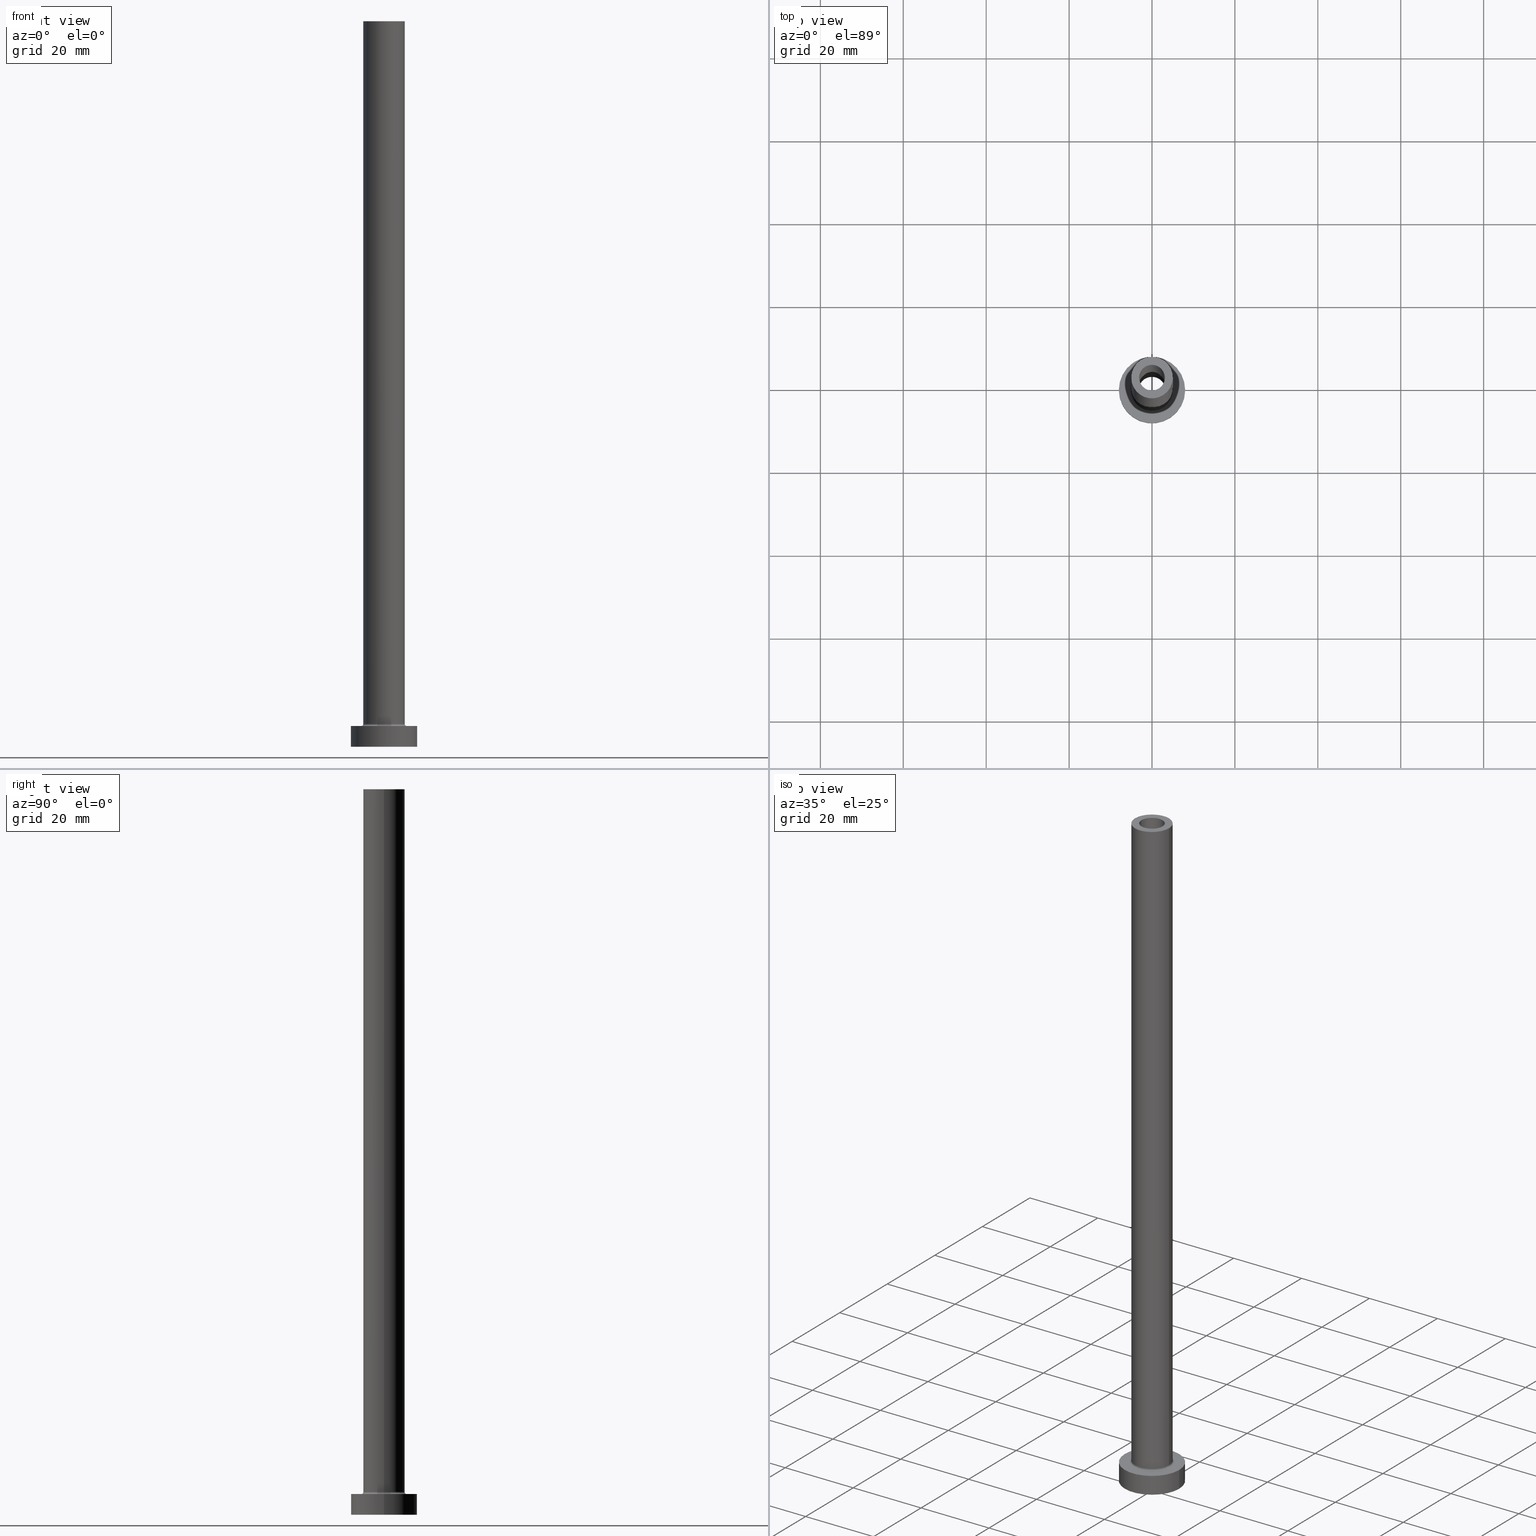
[diagram: canonical four-view strip — front | top / right | iso, engineering-drawing reading convention]
A machine part, canonical four-view strip (front | top / right | iso — engineering-drawing reading convention). The complete STEP part file that produces these views, byte-faithful:
ISO-10303-21;
HEADER;
FILE_DESCRIPTION (( 'STEP AP203' ),
    '1' );
FILE_NAME ('6a0a.STEP',
    '2023-02-13T09:12:11',
    ( '' ),
    ( '' ),
    'SwSTEP 2.0',
    'SolidWorks 2019',
    '' );
FILE_SCHEMA (( 'CONFIG_CONTROL_DESIGN' ));
ENDSEC;

DATA;
#1 = AXIS2_PLACEMENT_3D ( 'NONE', #14, #52, #18 ) ;
#2 = DIRECTION ( 'NONE',  ( -1.000000000000000000, 0.000000000000000000, 0.000000000000000000 ) ) ;
#3 = CC_DESIGN_APPROVAL ( #161, ( #322 ) ) ;
#4 = ADVANCED_BREP_SHAPE_REPRESENTATION ( '6a0a', ( #264, #373 ), #255 ) ;
#5 = DIRECTION ( 'NONE',  ( 0.000000000000000000, 0.000000000000000000, -1.000000000000000000 ) ) ;
#6 = DIRECTION ( 'NONE',  ( 1.000000000000000000, 0.000000000000000000, 0.000000000000000000 ) ) ;
#7 = APPROVAL_ROLE ( '' ) ;
#8 = CARTESIAN_POINT ( 'NONE',  ( -3.100000000000000089, 0.000000000000000000, 175.0000000000000284 ) ) ;
#9 = AXIS2_PLACEMENT_3D ( 'NONE', #166, #143, #237 ) ;
#10 = DATE_TIME_ROLE ( 'creation_date' ) ;
#11 = EDGE_CURVE ( 'NONE', #44, #209, #23, .T. ) ;
#12 = PLANE ( 'NONE',  #106 ) ;
#13 = PERSON_AND_ORGANIZATION_ROLE ( 'design_owner' ) ;
#14 = CARTESIAN_POINT ( 'NONE',  ( 0.000000000000000000, 0.000000000000000000, 130.0000000000000000 ) ) ;
#15 = CARTESIAN_POINT ( 'NONE',  ( 0.000000000000000000, 0.000000000000000000, 130.0000000000000000 ) ) ;
#16 = AXIS2_PLACEMENT_3D ( 'NONE', #232, #381, #244 ) ;
#17 = AXIS2_PLACEMENT_3D ( 'NONE', #128, #226, #51 ) ;
#18 = DIRECTION ( 'NONE',  ( 1.000000000000000000, 0.000000000000000000, 0.000000000000000000 ) ) ;
#19 = CARTESIAN_POINT ( 'NONE',  ( -5.000000000000000000, 0.000000000000000000, 175.0000000000000284 ) ) ;
#20 = EDGE_LOOP ( 'NONE', ( #297, #198, #185, #277 ) ) ;
#21 = COORDINATED_UNIVERSAL_TIME_OFFSET ( 1, 0, .AHEAD. ) ;
#22 = DIRECTION ( 'NONE',  ( 0.000000000000000000, 0.000000000000000000, 1.000000000000000000 ) ) ;
#23 = LINE ( 'NONE', #454, #210 ) ;
#24 = ORIENTED_EDGE ( 'NONE', *, *, #155, .F. ) ;
#25 = CIRCLE ( 'NONE', #453, 5.000000000000000000 ) ;
#26 = PERSON_AND_ORGANIZATION_ROLE ( 'design_supplier' ) ;
#27 = CIRCLE ( 'NONE', #193, 0.5000000000000004441 ) ;
#28 = ORIENTED_EDGE ( 'NONE', *, *, #376, .T. ) ;
#29 = VERTEX_POINT ( 'NONE', #103 ) ;
#30 = FACE_OUTER_BOUND ( 'NONE', #140, .T. ) ;
#31 = ADVANCED_FACE ( 'NONE', ( #312 ), #267, .T. ) ;
#32 = ORIENTED_EDGE ( 'NONE', *, *, #370, .T. ) ;
#33 = APPROVAL_DATE_TIME ( #417, #162 ) ;
#34 = VERTEX_POINT ( 'NONE', #392 ) ;
#35 = EDGE_CURVE ( 'NONE', #249, #29, #25, .T. ) ;
#36 = CIRCLE ( 'NONE', #77, 3.100000000000000089 ) ;
#37 = AXIS2_PLACEMENT_3D ( 'NONE', #235, #22, #107 ) ;
#38 = DIRECTION ( 'NONE',  ( 1.000000000000000000, 0.000000000000000000, 0.000000000000000000 ) ) ;
#39 = ORIENTED_EDGE ( 'NONE', *, *, #295, .T. ) ;
#40 = ADVANCED_FACE ( 'NONE', ( #355 ), #275, .F. ) ;
#41 = DIRECTION ( 'NONE',  ( -0.000000000000000000, -0.000000000000000000, -1.000000000000000000 ) ) ;
#42 = EDGE_LOOP ( 'NONE', ( #204, #202 ) ) ;
#43 = CARTESIAN_POINT ( 'NONE',  ( 0.000000000000000000, 0.000000000000000000, 0.000000000000000000 ) ) ;
#44 = VERTEX_POINT ( 'NONE', #423 ) ;
#45 = AXIS2_PLACEMENT_3D ( 'NONE', #426, #424, #299 ) ;
#46 = ORIENTED_EDGE ( 'NONE', *, *, #50, .T. ) ;
#47 = CARTESIAN_POINT ( 'NONE',  ( 0.000000000000000000, 0.000000000000000000, 5.500000000000005329 ) ) ;
#48 = APPROVAL_STATUS ( 'not_yet_approved' ) ;
#49 = CARTESIAN_POINT ( 'NONE',  ( 0.000000000000000000, 0.000000000000000000, 175.0000000000000284 ) ) ;
#50 = EDGE_CURVE ( 'NONE', #44, #380, #174, .T. ) ;
#51 = DIRECTION ( 'NONE',  ( 1.000000000000000000, 0.000000000000000000, 0.000000000000000000 ) ) ;
#52 = DIRECTION ( 'NONE',  ( 0.000000000000000000, 0.000000000000000000, 1.000000000000000000 ) ) ;
#53 = DIRECTION ( 'NONE',  ( -1.000000000000000000, 0.000000000000000000, 0.000000000000000000 ) ) ;
#54 = AXIS2_PLACEMENT_3D ( 'NONE', #49, #180, #116 ) ;
#55 = ORGANIZATION ( 'NEUR�EN�', 'NEUR�EN�', '' ) ;
#56 = CARTESIAN_POINT ( 'NONE',  ( 3.250000000000000444, 3.980102097228898231E-16, 139.1923881554251068 ) ) ;
#57 = CC_DESIGN_PERSON_AND_ORGANIZATION_ASSIGNMENT ( #315, #26, ( #261 ) ) ;
#58 = ORIENTED_EDGE ( 'NONE', *, *, #181, .T. ) ;
#59 = CARTESIAN_POINT ( 'NONE',  ( 3.100000000000000089, 3.796405077356794918E-16, 130.0000000000000000 ) ) ;
#60 = ORIENTED_EDGE ( 'NONE', *, *, #245, .F. ) ;
#61 = VERTEX_POINT ( 'NONE', #67 ) ;
#62 = AXIS2_PLACEMENT_3D ( 'NONE', #437, #262, #378 ) ;
#63 = PERSON_AND_ORGANIZATION ( #172, #55 ) ;
#64 = EDGE_LOOP ( 'NONE', ( #328, #349, #39, #95 ) ) ;
#65 = FACE_OUTER_BOUND ( 'NONE', #397, .T. ) ;
#66 = VERTEX_POINT ( 'NONE', #59 ) ;
#67 = CARTESIAN_POINT ( 'NONE',  ( -3.250000000000000444, 0.000000000000000000, 130.0000000000000000 ) ) ;
#68 = AXIS2_PLACEMENT_3D ( 'NONE', #177, #156, #280 ) ;
#69 = VECTOR ( 'NONE', #41, 1000.000000000000000 ) ;
#70 = CARTESIAN_POINT ( 'NONE',  ( 0.000000000000000000, 0.000000000000000000, 130.0000000000000000 ) ) ;
#71 = EDGE_LOOP ( 'NONE', ( #382, #450, #251, #147 ) ) ;
#72 = EDGE_CURVE ( 'NONE', #345, #76, #36, .T. ) ;
#73 = CARTESIAN_POINT ( 'NONE',  ( 0.000000000000000000, 0.000000000000000000, 175.0000000000000284 ) ) ;
#74 = ORIENTED_EDGE ( 'NONE', *, *, #295, .F. ) ;
#75 = CYLINDRICAL_SURFACE ( 'NONE', #68, 3.250000000000000444 ) ;
#76 = VERTEX_POINT ( 'NONE', #415 ) ;
#77 = AXIS2_PLACEMENT_3D ( 'NONE', #390, #351, #38 ) ;
#78 = DIRECTION ( 'NONE',  ( -0.000000000000000000, -0.000000000000000000, -1.000000000000000000 ) ) ;
#79 = APPLICATION_CONTEXT ( 'configuration controlled 3d designs of mechanical parts and assemblies' ) ;
#80 = APPLICATION_PROTOCOL_DEFINITION ( 'international standard', 'config_control_design', 1994, #324 ) ;
#81 = FACE_BOUND ( 'NONE', #139, .T. ) ;
#82 = ADVANCED_FACE ( 'NONE', ( #30 ), #341, .F. ) ;
#83 = PERSON_AND_ORGANIZATION_ROLE ( 'creator' ) ;
#84 = CARTESIAN_POINT ( 'NONE',  ( 0.000000000000000000, 0.000000000000000000, 0.000000000000000000 ) ) ;
#85 =( LENGTH_UNIT ( ) NAMED_UNIT ( * ) SI_UNIT ( .MILLI., .METRE. ) );
#86 = CARTESIAN_POINT ( 'NONE',  ( 0.000000000000000000, 0.000000000000000000, 175.0000000000000284 ) ) ;
#87 = CIRCLE ( 'NONE', #45, 3.250000000000000444 ) ;
#88 = CIRCLE ( 'NONE', #266, 5.000000000000000000 ) ;
#89 = CARTESIAN_POINT ( 'NONE',  ( 0.000000000000000000, 0.000000000000000000, 139.1923881554251068 ) ) ;
#90 = DIRECTION ( 'NONE',  ( 1.000000000000000000, 0.000000000000000000, -0.000000000000000000 ) ) ;
#91 = CARTESIAN_POINT ( 'NONE',  ( 0.000000000000000000, 0.000000000000000000, 0.000000000000000000 ) ) ;
#92 = DIRECTION ( 'NONE',  ( -0.000000000000000000, -0.000000000000000000, -1.000000000000000000 ) ) ;
#93 = CC_DESIGN_PERSON_AND_ORGANIZATION_ASSIGNMENT ( #63, #137, ( #261 ) ) ;
#94 = AXIS2_PLACEMENT_3D ( 'NONE', #47, #186, #123 ) ;
#95 = ORIENTED_EDGE ( 'NONE', *, *, #35, .T. ) ;
#96 = LOCAL_TIME ( 10, 12, 11.00000000000000000, #269 ) ;
#97 = DATE_TIME_ROLE ( 'classification_date' ) ;
#98 = DIRECTION ( 'NONE',  ( -0.000000000000000000, -0.000000000000000000, -1.000000000000000000 ) ) ;
#99 = DIRECTION ( 'NONE',  ( -1.000000000000000000, 0.000000000000000000, 0.000000000000000000 ) ) ;
#100 = DIRECTION ( 'NONE',  ( 1.000000000000000000, 0.000000000000000000, 0.000000000000000000 ) ) ;
#101 = EDGE_CURVE ( 'NONE', #422, #34, #377, .T. ) ;
#102 = SHAPE_DEFINITION_REPRESENTATION ( #115, #4 ) ;
#103 = CARTESIAN_POINT ( 'NONE',  ( 5.000000000000000000, 6.123233995736766282E-16, 5.500000000000005329 ) ) ;
#104 = ORIENTED_EDGE ( 'NONE', *, *, #402, .T. ) ;
#105 = AXIS2_PLACEMENT_3D ( 'NONE', #265, #446, #100 ) ;
#106 = AXIS2_PLACEMENT_3D ( 'NONE', #15, #263, #90 ) ;
#107 = DIRECTION ( 'NONE',  ( 1.000000000000000000, 0.000000000000000000, 0.000000000000000000 ) ) ;
#108 = ORIENTED_EDGE ( 'NONE', *, *, #205, .F. ) ;
#109 = CARTESIAN_POINT ( 'NONE',  ( 8.000000000000000000, 9.797174393178825657E-16, 5.000000000000000000 ) ) ;
#110 = EDGE_LOOP ( 'NONE', ( #233, #112, #447, #413 ) ) ;
#111 = CARTESIAN_POINT ( 'NONE',  ( 8.000000000000000000, 9.797174393178825657E-16, 5.000000000000000000 ) ) ;
#112 = ORIENTED_EDGE ( 'NONE', *, *, #314, .T. ) ;
#113 = DIRECTION ( 'NONE',  ( 1.000000000000000000, 0.000000000000000000, 0.000000000000000000 ) ) ;
#114 = CC_DESIGN_PERSON_AND_ORGANIZATION_ASSIGNMENT ( #165, #444, ( #142 ) ) ;
#115 = PRODUCT_DEFINITION_SHAPE ( 'NONE', 'NONE',  #322 ) ;
#116 = DIRECTION ( 'NONE',  ( 1.000000000000000000, 0.000000000000000000, 0.000000000000000000 ) ) ;
#117 = EDGE_LOOP ( 'NONE', ( #173, #451 ) ) ;
#118 = LINE ( 'NONE', #111, #69 ) ;
#119 = PRODUCT_RELATED_PRODUCT_CATEGORY ( 'detail', '', ( #367 ) ) ;
#120 = EDGE_CURVE ( 'NONE', #352, #182, #238, .T. ) ;
#121 = DIRECTION ( 'NONE',  ( -1.000000000000000000, 0.000000000000000000, 0.000000000000000000 ) ) ;
#122 = CIRCLE ( 'NONE', #292, 3.250000000000000444 ) ;
#123 = DIRECTION ( 'NONE',  ( 1.000000000000000000, 0.000000000000000000, 0.000000000000000000 ) ) ;
#124 = APPROVAL_PERSON_ORGANIZATION ( #258, #214, #353 ) ;
#125 = APPROVAL_DATE_TIME ( #294, #161 ) ;
#126 = DIRECTION ( 'NONE',  ( 0.000000000000000000, 0.000000000000000000, 1.000000000000000000 ) ) ;
#127 = CALENDAR_DATE ( 2023, 13, 2 ) ;
#128 = CARTESIAN_POINT ( 'NONE',  ( 0.000000000000000000, 0.000000000000000000, 5.000000000000000000 ) ) ;
#129 = DIRECTION ( 'NONE',  ( 0.000000000000000000, 0.000000000000000000, -1.000000000000000000 ) ) ;
#130 = PERSON_AND_ORGANIZATION ( #172, #55 ) ;
#131 = CC_DESIGN_PERSON_AND_ORGANIZATION_ASSIGNMENT ( #405, #83, ( #322 ) ) ;
#132 = DATE_AND_TIME ( #386, #221 ) ;
#133 = CIRCLE ( 'NONE', #94, 5.000000000000000000 ) ;
#134 = AXIS2_PLACEMENT_3D ( 'NONE', #270, #354, #460 ) ;
#135 = CIRCLE ( 'NONE', #318, 8.000000000000000000 ) ;
#136 = ORIENTED_EDGE ( 'NONE', *, *, #456, .T. ) ;
#137 = PERSON_AND_ORGANIZATION_ROLE ( 'creator' ) ;
#138 = CYLINDRICAL_SURFACE ( 'NONE', #134, 3.100000000000000089 ) ;
#139 = EDGE_LOOP ( 'NONE', ( #325, #197 ) ) ;
#140 = EDGE_LOOP ( 'NONE', ( #319, #240, #136, #391 ) ) ;
#141 = AXIS2_PLACEMENT_3D ( 'NONE', #316, #274, #6 ) ;
#142 = SECURITY_CLASSIFICATION ( '', '', #343 ) ;
#143 = DIRECTION ( 'NONE',  ( -0.000000000000000000, -0.000000000000000000, -1.000000000000000000 ) ) ;
#144 = EDGE_LOOP ( 'NONE', ( #108, #272 ) ) ;
#145 = EDGE_CURVE ( 'NONE', #66, #231, #432, .T. ) ;
#146 = CARTESIAN_POINT ( 'NONE',  ( 5.000000000000000000, 6.123233995736766282E-16, 175.0000000000000284 ) ) ;
#147 = ORIENTED_EDGE ( 'NONE', *, *, #11, .F. ) ;
#148 = DIRECTION ( 'NONE',  ( -0.000000000000000000, -0.000000000000000000, -1.000000000000000000 ) ) ;
#149 = EDGE_LOOP ( 'NONE', ( #24, #394, #317, #74 ) ) ;
#150 = CIRCLE ( 'NONE', #1, 3.100000000000000089 ) ;
#151 = DIRECTION ( 'NONE',  ( 1.000000000000000000, 0.000000000000000000, 0.000000000000000000 ) ) ;
#152 = ORIENTED_EDGE ( 'NONE', *, *, #456, .F. ) ;
#153 = CARTESIAN_POINT ( 'NONE',  ( 8.000000000000000000, 9.797174393178825657E-16, 0.000000000000000000 ) ) ;
#154 = EDGE_CURVE ( 'NONE', #380, #236, #118, .T. ) ;
#155 = EDGE_CURVE ( 'NONE', #385, #400, #283, .T. ) ;
#156 = DIRECTION ( 'NONE',  ( 0.000000000000000000, 0.000000000000000000, -1.000000000000000000 ) ) ;
#157 = AXIS2_PLACEMENT_3D ( 'NONE', #278, #201, #271 ) ;
#158 = DIRECTION ( 'NONE',  ( 0.000000000000000000, 0.000000000000000000, -1.000000000000000000 ) ) ;
#159 = AXIS2_PLACEMENT_3D ( 'NONE', #89, #371, #223 ) ;
#160 = CARTESIAN_POINT ( 'NONE',  ( 5.500000000000000000, 0.000000000000000000, 5.500000000000005329 ) ) ;
#161 = APPROVAL ( #48, 'NEUR�EN�' ) ;
#162 = APPROVAL ( #448, 'NEUR�EN�' ) ;
#163 = APPROVAL_PERSON_ORGANIZATION ( #213, #161, #7 ) ;
#164 = LINE ( 'NONE', #296, #366 ) ;
#165 = PERSON_AND_ORGANIZATION ( #172, #55 ) ;
#166 = CARTESIAN_POINT ( 'NONE',  ( 0.000000000000000000, 0.000000000000000000, 175.0000000000000284 ) ) ;
#167 = CIRCLE ( 'NONE', #427, 3.250000000000000444 ) ;
#168 = ORIENTED_EDGE ( 'NONE', *, *, #245, .T. ) ;
#169 = CALENDAR_DATE ( 2023, 13, 2 ) ;
#170 = ORIENTED_EDGE ( 'NONE', *, *, #452, .T. ) ;
#171 = DIRECTION ( 'NONE',  ( 0.000000000000000000, 0.000000000000000000, 1.000000000000000000 ) ) ;
#172 = PERSON ( 'NEUR�EN�', 'NEUR�EN�', 'NEUR�EN�', ('NEUR�EN�'), ('NEUR�EN�'), ('NEUR�EN�') ) ;
#173 = ORIENTED_EDGE ( 'NONE', *, *, #300, .F. ) ;
#174 = CIRCLE ( 'NONE', #16, 8.000000000000000000 ) ;
#175 = CC_DESIGN_APPROVAL ( #214, ( #261 ) ) ;
#176 = CARTESIAN_POINT ( 'NONE',  ( 0.000000000000000000, 0.000000000000000000, 5.500000000000005329 ) ) ;
#177 = CARTESIAN_POINT ( 'NONE',  ( 0.000000000000000000, 0.000000000000000000, 139.1923881554251068 ) ) ;
#178 = ORIENTED_EDGE ( 'NONE', *, *, #72, .T. ) ;
#179 = LINE ( 'NONE', #441, #293 ) ;
#180 = DIRECTION ( 'NONE',  ( 0.000000000000000000, 0.000000000000000000, 1.000000000000000000 ) ) ;
#181 = EDGE_CURVE ( 'NONE', #249, #34, #425, .T. ) ;
#182 = VERTEX_POINT ( 'NONE', #369 ) ;
#183 = AXIS2_PLACEMENT_3D ( 'NONE', #207, #401, #360 ) ;
#184 = PLANE ( 'NONE',  #414 ) ;
#185 = ORIENTED_EDGE ( 'NONE', *, *, #11, .T. ) ;
#186 = DIRECTION ( 'NONE',  ( 0.000000000000000000, 0.000000000000000000, 1.000000000000000000 ) ) ;
#187 = COORDINATED_UNIVERSAL_TIME_OFFSET ( 1, 0, .AHEAD. ) ;
#188 = FACE_OUTER_BOUND ( 'NONE', #20, .T. ) ;
#189 = COORDINATED_UNIVERSAL_TIME_OFFSET ( 1, 0, .AHEAD. ) ;
#190 = AXIS2_PLACEMENT_3D ( 'NONE', #461, #323, #431 ) ;
#191 = CC_DESIGN_DATE_AND_TIME_ASSIGNMENT ( #132, #97, ( #142 ) ) ;
#192 = APPLICATION_PROTOCOL_DEFINITION ( 'international standard', 'config_control_design', 1994, #79 ) ;
#193 = AXIS2_PLACEMENT_3D ( 'NONE', #160, #339, #301 ) ;
#194 = ADVANCED_FACE ( 'NONE', ( #368 ), #75, .F. ) ;
#195 = CARTESIAN_POINT ( 'NONE',  ( 0.000000000000000000, 0.000000000000000000, 5.000000000000000000 ) ) ;
#196 = CARTESIAN_POINT ( 'NONE',  ( 0.000000000000000000, 0.000000000000000000, 5.500000000000005329 ) ) ;
#197 = ORIENTED_EDGE ( 'NONE', *, *, #439, .T. ) ;
#198 = ORIENTED_EDGE ( 'NONE', *, *, #50, .F. ) ;
#199 = APPROVAL_ROLE ( '' ) ;
#200 = FACE_OUTER_BOUND ( 'NONE', #71, .T. ) ;
#201 = DIRECTION ( 'NONE',  ( 0.000000000000000000, 0.000000000000000000, 1.000000000000000000 ) ) ;
#202 = ORIENTED_EDGE ( 'NONE', *, *, #145, .T. ) ;
#203 = ORIENTED_EDGE ( 'NONE', *, *, #402, .F. ) ;
#204 = ORIENTED_EDGE ( 'NONE', *, *, #303, .T. ) ;
#205 = EDGE_CURVE ( 'NONE', #209, #236, #387, .T. ) ;
#206 = FACE_BOUND ( 'NONE', #117, .T. ) ;
#207 = CARTESIAN_POINT ( 'NONE',  ( -5.500000000000000000, 6.735557395310442023E-16, 5.500000000000005329 ) ) ;
#208 = FACE_OUTER_BOUND ( 'NONE', #279, .T. ) ;
#209 = VERTEX_POINT ( 'NONE', #332 ) ;
#210 = VECTOR ( 'NONE', #98, 1000.000000000000000 ) ;
#211 = LOCAL_TIME ( 10, 12, 11.00000000000000000, #189 ) ;
#212 = CARTESIAN_POINT ( 'NONE',  ( -3.100000000000000089, 0.000000000000000000, 130.0000000000000000 ) ) ;
#213 = PERSON_AND_ORGANIZATION ( #172, #55 ) ;
#214 = APPROVAL ( #407, 'NEUR�EN�' ) ;
#215 = CARTESIAN_POINT ( 'NONE',  ( -5.000000000000000000, 0.000000000000000000, 5.500000000000005329 ) ) ;
#216 = ADVANCED_FACE ( 'NONE', ( #81, #285 ), #184, .T. ) ;
#217 = CYLINDRICAL_SURFACE ( 'NONE', #159, 3.250000000000000444 ) ;
#218 = DIRECTION ( 'NONE',  ( 0.000000000000000000, 0.000000000000000000, 1.000000000000000000 ) ) ;
#219 = DIRECTION ( 'NONE',  ( 0.000000000000000000, 0.000000000000000000, 1.000000000000000000 ) ) ;
#220 = VECTOR ( 'NONE', #148, 1000.000000000000000 ) ;
#221 = LOCAL_TIME ( 10, 12, 11.00000000000000000, #383 ) ;
#222 = PLANE ( 'NONE',  #62 ) ;
#223 = DIRECTION ( 'NONE',  ( -1.000000000000000000, 0.000000000000000000, 0.000000000000000000 ) ) ;
#224 = ADVANCED_FACE ( 'NONE', ( #208 ), #363, .F. ) ;
#225 = CARTESIAN_POINT ( 'NONE',  ( 3.100000000000000089, 3.796405077356794918E-16, 175.0000000000000284 ) ) ;
#226 = DIRECTION ( 'NONE',  ( 0.000000000000000000, 0.000000000000000000, 1.000000000000000000 ) ) ;
#227 = FACE_BOUND ( 'NONE', #428, .T. ) ;
#228 = AXIS2_PLACEMENT_3D ( 'NONE', #247, #326, #151 ) ;
#229 = VECTOR ( 'NONE', #158, 1000.000000000000000 ) ;
#230 = ADVANCED_FACE ( 'NONE', ( #188 ), #429, .T. ) ;
#231 = VERTEX_POINT ( 'NONE', #212 ) ;
#232 = CARTESIAN_POINT ( 'NONE',  ( 0.000000000000000000, 0.000000000000000000, 5.000000000000000000 ) ) ;
#233 = ORIENTED_EDGE ( 'NONE', *, *, #347, .T. ) ;
#234 = DATE_AND_TIME ( #169, #342 ) ;
#235 = CARTESIAN_POINT ( 'NONE',  ( 0.000000000000000000, 0.000000000000000000, 175.0000000000000284 ) ) ;
#236 = VERTEX_POINT ( 'NONE', #153 ) ;
#237 = DIRECTION ( 'NONE',  ( -1.000000000000000000, 0.000000000000000000, 0.000000000000000000 ) ) ;
#238 = CIRCLE ( 'NONE', #141, 3.250000000000000444 ) ;
#239 = AXIS2_PLACEMENT_3D ( 'NONE', #86, #92, #53 ) ;
#240 = ORIENTED_EDGE ( 'NONE', *, *, #289, .F. ) ;
#241 = CALENDAR_DATE ( 2023, 13, 2 ) ;
#242 = UNCERTAINTY_MEASURE_WITH_UNIT (LENGTH_MEASURE( 1.000000000000000082E-05 ), #85, 'distance_accuracy_value', 'NONE');
#243 = CYLINDRICAL_SURFACE ( 'NONE', #440, 8.000000000000000000 ) ;
#244 = DIRECTION ( 'NONE',  ( 1.000000000000000000, 0.000000000000000000, 0.000000000000000000 ) ) ;
#245 = EDGE_CURVE ( 'NONE', #399, #61, #122, .T. ) ;
#246 = EDGE_LOOP ( 'NONE', ( #46, #284 ) ) ;
#247 = CARTESIAN_POINT ( 'NONE',  ( 0.000000000000000000, 0.000000000000000000, 130.0000000000000000 ) ) ;
#248 = ADVANCED_FACE ( 'NONE', ( #206, #430 ), #253, .F. ) ;
#249 = VERTEX_POINT ( 'NONE', #215 ) ;
#250 = DIRECTION ( 'NONE',  ( 0.000000000000000000, 0.000000000000000000, 1.000000000000000000 ) ) ;
#251 = ORIENTED_EDGE ( 'NONE', *, *, #379, .T. ) ;
#252 = DIRECTION ( 'NONE',  ( 0.000000000000000000, 0.000000000000000000, 1.000000000000000000 ) ) ;
#253 = PLANE ( 'NONE',  #190 ) ;
#254 = AXIS2_PLACEMENT_3D ( 'NONE', #196, #171, #309 ) ;
#255 =( GEOMETRIC_REPRESENTATION_CONTEXT ( 3 ) GLOBAL_UNCERTAINTY_ASSIGNED_CONTEXT ( ( #242 ) ) GLOBAL_UNIT_ASSIGNED_CONTEXT ( ( #85, #298, #411 ) ) REPRESENTATION_CONTEXT ( 'NONE', 'WORKASPACE' ) );
#256 = LINE ( 'NONE', #404, #220 ) ;
#257 = DIRECTION ( 'NONE',  ( 1.000000000000000000, 0.000000000000000000, 0.000000000000000000 ) ) ;
#258 = PERSON_AND_ORGANIZATION ( #172, #55 ) ;
#259 = DIRECTION ( 'NONE',  ( 0.000000000000000000, 0.000000000000000000, -1.000000000000000000 ) ) ;
#260 = EDGE_CURVE ( 'NONE', #385, #29, #458, .T. ) ;
#261 = PRODUCT_DEFINITION_FORMATION_WITH_SPECIFIED_SOURCE ( 'LIBOVOLN�', '', #367, .NOT_KNOWN. ) ;
#262 = DIRECTION ( 'NONE',  ( 0.000000000000000000, 0.000000000000000000, 1.000000000000000000 ) ) ;
#263 = DIRECTION ( 'NONE',  ( 0.000000000000000000, 0.000000000000000000, 1.000000000000000000 ) ) ;
#264 = MANIFOLD_SOLID_BREP ( 'Odebrat vysunut�m4', #357 ) ;
#265 = CARTESIAN_POINT ( 'NONE',  ( 0.000000000000000000, 0.000000000000000000, 5.000000000000000000 ) ) ;
#266 = AXIS2_PLACEMENT_3D ( 'NONE', #434, #126, #257 ) ;
#267 = CYLINDRICAL_SURFACE ( 'NONE', #9, 5.000000000000000000 ) ;
#268 = EDGE_LOOP ( 'NONE', ( #286, #60 ) ) ;
#269 = COORDINATED_UNIVERSAL_TIME_OFFSET ( 1, 0, .AHEAD. ) ;
#270 = CARTESIAN_POINT ( 'NONE',  ( 0.000000000000000000, 0.000000000000000000, 175.0000000000000284 ) ) ;
#271 = DIRECTION ( 'NONE',  ( 1.000000000000000000, 0.000000000000000000, 0.000000000000000000 ) ) ;
#272 = ORIENTED_EDGE ( 'NONE', *, *, #379, .F. ) ;
#273 = CARTESIAN_POINT ( 'NONE',  ( 3.250000000000000444, 3.980102097228898231E-16, 130.0000000000000000 ) ) ;
#274 = DIRECTION ( 'NONE',  ( -0.000000000000000000, -0.000000000000000000, -1.000000000000000000 ) ) ;
#275 = TOROIDAL_SURFACE ( 'NONE', #157, 5.500000000000000000, 0.5000000000000000000 ) ;
#276 = CIRCLE ( 'NONE', #409, 5.500000000000000000 ) ;
#277 = ORIENTED_EDGE ( 'NONE', *, *, #205, .T. ) ;
#278 = CARTESIAN_POINT ( 'NONE',  ( 0.000000000000000000, 0.000000000000000000, 5.500000000000005329 ) ) ;
#279 = EDGE_LOOP ( 'NONE', ( #104, #170, #361, #281 ) ) ;
#280 = DIRECTION ( 'NONE',  ( -1.000000000000000000, 0.000000000000000000, 0.000000000000000000 ) ) ;
#281 = ORIENTED_EDGE ( 'NONE', *, *, #370, .F. ) ;
#282 = DIRECTION ( 'NONE',  ( 1.000000000000000000, 0.000000000000000000, 0.000000000000000000 ) ) ;
#283 = CIRCLE ( 'NONE', #54, 5.000000000000000000 ) ;
#284 = ORIENTED_EDGE ( 'NONE', *, *, #320, .T. ) ;
#285 = FACE_OUTER_BOUND ( 'NONE', #246, .T. ) ;
#286 = ORIENTED_EDGE ( 'NONE', *, *, #347, .F. ) ;
#287 = CARTESIAN_POINT ( 'NONE',  ( 0.000000000000000000, 0.000000000000000000, 5.000000000000000000 ) ) ;
#288 = DIRECTION ( 'NONE',  ( 0.000000000000000000, 0.000000000000000000, 1.000000000000000000 ) ) ;
#289 = EDGE_CURVE ( 'NONE', #29, #249, #133, .T. ) ;
#290 = DIRECTION ( 'NONE',  ( -0.000000000000000000, -0.000000000000000000, -1.000000000000000000 ) ) ;
#291 = CARTESIAN_POINT ( 'NONE',  ( 0.000000000000000000, 0.000000000000000000, 5.000000000000000000 ) ) ;
#292 = AXIS2_PLACEMENT_3D ( 'NONE', #70, #288, #398 ) ;
#293 = VECTOR ( 'NONE', #129, 1000.000000000000000 ) ;
#294 = DATE_AND_TIME ( #333, #421 ) ;
#295 = EDGE_CURVE ( 'NONE', #400, #249, #256, .T. ) ;
#296 = CARTESIAN_POINT ( 'NONE',  ( -3.250000000000000444, 0.000000000000000000, 139.1923881554251068 ) ) ;
#297 = ORIENTED_EDGE ( 'NONE', *, *, #154, .F. ) ;
#298 =( NAMED_UNIT ( * ) PLANE_ANGLE_UNIT ( ) SI_UNIT ( $, .RADIAN. ) );
#299 = DIRECTION ( 'NONE',  ( 1.000000000000000000, 0.000000000000000000, 0.000000000000000000 ) ) ;
#300 = EDGE_CURVE ( 'NONE', #182, #352, #87, .T. ) ;
#301 = DIRECTION ( 'NONE',  ( 0.000000000000000000, 0.000000000000000000, -1.000000000000000000 ) ) ;
#302 = FACE_OUTER_BOUND ( 'NONE', #356, .T. ) ;
#303 = EDGE_CURVE ( 'NONE', #231, #66, #150, .T. ) ;
#304 = DIRECTION ( 'NONE',  ( 1.000000000000000000, 0.000000000000000000, 0.000000000000000000 ) ) ;
#305 = FACE_OUTER_BOUND ( 'NONE', #436, .T. ) ;
#306 = CARTESIAN_POINT ( 'NONE',  ( 0.000000000000000000, 0.000000000000000000, 130.0000000000000000 ) ) ;
#307 = ADVANCED_FACE ( 'NONE', ( #227, #302 ), #222, .T. ) ;
#308 = APPROVAL_DATE_TIME ( #234, #214 ) ;
#309 = DIRECTION ( 'NONE',  ( 1.000000000000000000, 0.000000000000000000, 0.000000000000000000 ) ) ;
#310 = PERSON_AND_ORGANIZATION ( #172, #55 ) ;
#311 = CARTESIAN_POINT ( 'NONE',  ( 5.500000000000000000, 0.000000000000000000, 5.000000000000002665 ) ) ;
#312 = FACE_OUTER_BOUND ( 'NONE', #64, .T. ) ;
#313 = ORIENTED_EDGE ( 'NONE', *, *, #155, .T. ) ;
#314 = EDGE_CURVE ( 'NONE', #399, #352, #438, .T. ) ;
#315 = PERSON_AND_ORGANIZATION ( #172, #55 ) ;
#316 = CARTESIAN_POINT ( 'NONE',  ( 0.000000000000000000, 0.000000000000000000, 0.000000000000000000 ) ) ;
#317 = ORIENTED_EDGE ( 'NONE', *, *, #289, .T. ) ;
#318 = AXIS2_PLACEMENT_3D ( 'NONE', #84, #218, #388 ) ;
#319 = ORIENTED_EDGE ( 'NONE', *, *, #181, .F. ) ;
#320 = EDGE_CURVE ( 'NONE', #380, #44, #365, .T. ) ;
#321 = ORIENTED_EDGE ( 'NONE', *, *, #452, .F. ) ;
#322 = PRODUCT_DEFINITION ( 'NEZN�M�', '', #261, #389 ) ;
#323 = DIRECTION ( 'NONE',  ( 0.000000000000000000, 0.000000000000000000, 1.000000000000000000 ) ) ;
#324 = APPLICATION_CONTEXT ( 'configuration controlled 3d designs of mechanical parts and assemblies' ) ;
#325 = ORIENTED_EDGE ( 'NONE', *, *, #101, .T. ) ;
#326 = DIRECTION ( 'NONE',  ( 0.000000000000000000, 0.000000000000000000, 1.000000000000000000 ) ) ;
#327 = VECTOR ( 'NONE', #406, 1000.000000000000000 ) ;
#328 = ORIENTED_EDGE ( 'NONE', *, *, #260, .F. ) ;
#329 = DIRECTION ( 'NONE',  ( -0.000000000000000000, -0.000000000000000000, -1.000000000000000000 ) ) ;
#330 = ORIENTED_EDGE ( 'NONE', *, *, #101, .F. ) ;
#331 = EDGE_CURVE ( 'NONE', #61, #182, #164, .T. ) ;
#332 = CARTESIAN_POINT ( 'NONE',  ( -8.000000000000000000, 0.000000000000000000, 0.000000000000000000 ) ) ;
#333 = CALENDAR_DATE ( 2023, 13, 2 ) ;
#334 = LINE ( 'NONE', #8, #229 ) ;
#335 = AXIS2_PLACEMENT_3D ( 'NONE', #43, #250, #282 ) ;
#336 = AXIS2_PLACEMENT_3D ( 'NONE', #73, #5, #2 ) ;
#337 = DATE_AND_TIME ( #127, #211 ) ;
#338 = ADVANCED_FACE ( 'NONE', ( #408, #410 ), #12, .F. ) ;
#339 = DIRECTION ( 'NONE',  ( 0.000000000000000000, -1.000000000000000000, 0.000000000000000000 ) ) ;
#340 = MECHANICAL_CONTEXT ( 'NONE', #79, 'mechanical' ) ;
#341 = TOROIDAL_SURFACE ( 'NONE', #254, 5.500000000000000000, 0.5000000000000000000 ) ;
#342 = LOCAL_TIME ( 10, 12, 11.00000000000000000, #21 ) ;
#343 = SECURITY_CLASSIFICATION_LEVEL ( 'unclassified' ) ;
#344 = DIRECTION ( 'NONE',  ( -0.000000000000000000, -0.000000000000000000, -1.000000000000000000 ) ) ;
#345 = VERTEX_POINT ( 'NONE', #225 ) ;
#346 = VECTOR ( 'NONE', #78, 1000.000000000000000 ) ;
#347 = EDGE_CURVE ( 'NONE', #61, #399, #167, .T. ) ;
#348 = CC_DESIGN_SECURITY_CLASSIFICATION ( #142, ( #261 ) ) ;
#349 = ORIENTED_EDGE ( 'NONE', *, *, #376, .F. ) ;
#350 = ORIENTED_EDGE ( 'NONE', *, *, #314, .F. ) ;
#351 = DIRECTION ( 'NONE',  ( 0.000000000000000000, 0.000000000000000000, 1.000000000000000000 ) ) ;
#352 = VERTEX_POINT ( 'NONE', #442 ) ;
#353 = APPROVAL_ROLE ( '' ) ;
#354 = DIRECTION ( 'NONE',  ( 0.000000000000000000, 0.000000000000000000, -1.000000000000000000 ) ) ;
#355 = FACE_OUTER_BOUND ( 'NONE', #459, .T. ) ;
#356 = EDGE_LOOP ( 'NONE', ( #28, #313 ) ) ;
#357 = CLOSED_SHELL ( 'NONE', ( #224, #194, #40, #364, #393, #230, #216, #248, #31, #307, #82, #457, #338, #435 ) ) ;
#358 = ORIENTED_EDGE ( 'NONE', *, *, #300, .T. ) ;
#359 = CC_DESIGN_PERSON_AND_ORGANIZATION_ASSIGNMENT ( #130, #13, ( #367 ) ) ;
#360 = DIRECTION ( 'NONE',  ( -1.000000000000000000, 1.224646799147351482E-16, 0.000000000000000000 ) ) ;
#361 = ORIENTED_EDGE ( 'NONE', *, *, #303, .F. ) ;
#362 = DIRECTION ( 'NONE',  ( 1.000000000000000000, 0.000000000000000000, -0.000000000000000000 ) ) ;
#363 = CYLINDRICAL_SURFACE ( 'NONE', #336, 3.100000000000000089 ) ;
#364 = ADVANCED_FACE ( 'NONE', ( #412 ), #443, .T. ) ;
#365 = CIRCLE ( 'NONE', #17, 8.000000000000000000 ) ;
#366 = VECTOR ( 'NONE', #259, 1000.000000000000000 ) ;
#367 = PRODUCT ( '6a0a', '6a0a', '', ( #340 ) ) ;
#368 = FACE_OUTER_BOUND ( 'NONE', #110, .T. ) ;
#369 = CARTESIAN_POINT ( 'NONE',  ( -3.250000000000000444, 0.000000000000000000, 0.000000000000000000 ) ) ;
#370 = EDGE_CURVE ( 'NONE', #76, #231, #334, .T. ) ;
#371 = DIRECTION ( 'NONE',  ( 0.000000000000000000, 0.000000000000000000, -1.000000000000000000 ) ) ;
#372 = CC_DESIGN_DATE_AND_TIME_ASSIGNMENT ( #337, #10, ( #322 ) ) ;
#373 = AXIS2_PLACEMENT_3D ( 'NONE', #91, #219, #375 ) ;
#374 = DIRECTION ( 'NONE',  ( 0.000000000000000000, 0.000000000000000000, 1.000000000000000000 ) ) ;
#375 = DIRECTION ( 'NONE',  ( 1.000000000000000000, 0.000000000000000000, 0.000000000000000000 ) ) ;
#376 = EDGE_CURVE ( 'NONE', #400, #385, #88, .T. ) ;
#377 = CIRCLE ( 'NONE', #105, 5.500000000000000000 ) ;
#378 = DIRECTION ( 'NONE',  ( 1.000000000000000000, 0.000000000000000000, -0.000000000000000000 ) ) ;
#379 = EDGE_CURVE ( 'NONE', #236, #209, #135, .T. ) ;
#380 = VERTEX_POINT ( 'NONE', #109 ) ;
#381 = DIRECTION ( 'NONE',  ( 0.000000000000000000, 0.000000000000000000, 1.000000000000000000 ) ) ;
#382 = ORIENTED_EDGE ( 'NONE', *, *, #320, .F. ) ;
#383 = COORDINATED_UNIVERSAL_TIME_OFFSET ( 1, 0, .AHEAD. ) ;
#384 = DIRECTION ( 'NONE',  ( 1.000000000000000000, 0.000000000000000000, 0.000000000000000000 ) ) ;
#385 = VERTEX_POINT ( 'NONE', #420 ) ;
#386 = CALENDAR_DATE ( 2023, 13, 2 ) ;
#387 = CIRCLE ( 'NONE', #335, 8.000000000000000000 ) ;
#388 = DIRECTION ( 'NONE',  ( 1.000000000000000000, 0.000000000000000000, 0.000000000000000000 ) ) ;
#389 = DESIGN_CONTEXT ( 'detailed design', #324, 'design' ) ;
#390 = CARTESIAN_POINT ( 'NONE',  ( 0.000000000000000000, 0.000000000000000000, 175.0000000000000284 ) ) ;
#391 = ORIENTED_EDGE ( 'NONE', *, *, #439, .F. ) ;
#392 = CARTESIAN_POINT ( 'NONE',  ( -5.500000000000000000, 6.735557395310442023E-16, 5.000000000000002665 ) ) ;
#393 = ADVANCED_FACE ( 'NONE', ( #200 ), #243, .T. ) ;
#394 = ORIENTED_EDGE ( 'NONE', *, *, #260, .T. ) ;
#395 = AXIS2_PLACEMENT_3D ( 'NONE', #396, #329, #121 ) ;
#396 = CARTESIAN_POINT ( 'NONE',  ( 0.000000000000000000, 0.000000000000000000, 5.000000000000000000 ) ) ;
#397 = EDGE_LOOP ( 'NONE', ( #321, #178, #32, #419 ) ) ;
#398 = DIRECTION ( 'NONE',  ( 1.000000000000000000, 0.000000000000000000, 0.000000000000000000 ) ) ;
#399 = VERTEX_POINT ( 'NONE', #273 ) ;
#400 = VERTEX_POINT ( 'NONE', #19 ) ;
#401 = DIRECTION ( 'NONE',  ( 1.224646799147353207E-16, 1.000000000000000000, -0.000000000000000000 ) ) ;
#402 = EDGE_CURVE ( 'NONE', #76, #345, #445, .T. ) ;
#403 = CC_DESIGN_APPROVAL ( #162, ( #142 ) ) ;
#404 = CARTESIAN_POINT ( 'NONE',  ( -5.000000000000000000, 0.000000000000000000, 175.0000000000000284 ) ) ;
#405 = PERSON_AND_ORGANIZATION ( #172, #55 ) ;
#406 = DIRECTION ( 'NONE',  ( 0.000000000000000000, 0.000000000000000000, -1.000000000000000000 ) ) ;
#407 = APPROVAL_STATUS ( 'not_yet_approved' ) ;
#408 = FACE_BOUND ( 'NONE', #42, .T. ) ;
#409 = AXIS2_PLACEMENT_3D ( 'NONE', #287, #290, #113 ) ;
#410 = FACE_OUTER_BOUND ( 'NONE', #268, .T. ) ;
#411 =( NAMED_UNIT ( * ) SI_UNIT ( $, .STERADIAN. ) SOLID_ANGLE_UNIT ( ) );
#412 = FACE_OUTER_BOUND ( 'NONE', #149, .T. ) ;
#413 = ORIENTED_EDGE ( 'NONE', *, *, #331, .F. ) ;
#414 = AXIS2_PLACEMENT_3D ( 'NONE', #291, #252, #362 ) ;
#415 = CARTESIAN_POINT ( 'NONE',  ( -3.100000000000000089, 0.000000000000000000, 175.0000000000000284 ) ) ;
#416 = ORIENTED_EDGE ( 'NONE', *, *, #72, .F. ) ;
#417 = DATE_AND_TIME ( #241, #96 ) ;
#418 = ORIENTED_EDGE ( 'NONE', *, *, #35, .F. ) ;
#419 = ORIENTED_EDGE ( 'NONE', *, *, #145, .F. ) ;
#420 = CARTESIAN_POINT ( 'NONE',  ( 5.000000000000000000, 6.123233995736766282E-16, 175.0000000000000284 ) ) ;
#421 = LOCAL_TIME ( 10, 12, 11.00000000000000000, #187 ) ;
#422 = VERTEX_POINT ( 'NONE', #311 ) ;
#423 = CARTESIAN_POINT ( 'NONE',  ( -8.000000000000000000, 0.000000000000000000, 5.000000000000000000 ) ) ;
#424 = DIRECTION ( 'NONE',  ( -0.000000000000000000, -0.000000000000000000, -1.000000000000000000 ) ) ;
#425 = CIRCLE ( 'NONE', #183, 0.5000000000000004441 ) ;
#426 = CARTESIAN_POINT ( 'NONE',  ( 0.000000000000000000, 0.000000000000000000, 0.000000000000000000 ) ) ;
#427 = AXIS2_PLACEMENT_3D ( 'NONE', #306, #374, #304 ) ;
#428 = EDGE_LOOP ( 'NONE', ( #203, #416 ) ) ;
#429 = CYLINDRICAL_SURFACE ( 'NONE', #395, 8.000000000000000000 ) ;
#430 = FACE_OUTER_BOUND ( 'NONE', #144, .T. ) ;
#431 = DIRECTION ( 'NONE',  ( 1.000000000000000000, 0.000000000000000000, -0.000000000000000000 ) ) ;
#432 = CIRCLE ( 'NONE', #228, 3.100000000000000089 ) ;
#433 = APPROVAL_PERSON_ORGANIZATION ( #310, #162, #199 ) ;
#434 = CARTESIAN_POINT ( 'NONE',  ( 0.000000000000000000, 0.000000000000000000, 175.0000000000000284 ) ) ;
#435 = ADVANCED_FACE ( 'NONE', ( #65 ), #138, .F. ) ;
#436 = EDGE_LOOP ( 'NONE', ( #350, #168, #455, #358 ) ) ;
#437 = CARTESIAN_POINT ( 'NONE',  ( 0.000000000000000000, 0.000000000000000000, 175.0000000000000284 ) ) ;
#438 = LINE ( 'NONE', #56, #327 ) ;
#439 = EDGE_CURVE ( 'NONE', #34, #422, #276, .T. ) ;
#440 = AXIS2_PLACEMENT_3D ( 'NONE', #195, #344, #99 ) ;
#441 = CARTESIAN_POINT ( 'NONE',  ( 3.100000000000000089, 3.796405077356794918E-16, 175.0000000000000284 ) ) ;
#442 = CARTESIAN_POINT ( 'NONE',  ( 3.250000000000000444, 3.980102097228898231E-16, 0.000000000000000000 ) ) ;
#443 = CYLINDRICAL_SURFACE ( 'NONE', #239, 5.000000000000000000 ) ;
#444 = PERSON_AND_ORGANIZATION_ROLE ( 'classification_officer' ) ;
#445 = CIRCLE ( 'NONE', #37, 3.100000000000000089 ) ;
#446 = DIRECTION ( 'NONE',  ( -0.000000000000000000, -0.000000000000000000, -1.000000000000000000 ) ) ;
#447 = ORIENTED_EDGE ( 'NONE', *, *, #120, .T. ) ;
#448 = APPROVAL_STATUS ( 'not_yet_approved' ) ;
#449 = DIRECTION ( 'NONE',  ( 0.000000000000000000, 0.000000000000000000, 1.000000000000000000 ) ) ;
#450 = ORIENTED_EDGE ( 'NONE', *, *, #154, .T. ) ;
#451 = ORIENTED_EDGE ( 'NONE', *, *, #120, .F. ) ;
#452 = EDGE_CURVE ( 'NONE', #345, #66, #179, .T. ) ;
#453 = AXIS2_PLACEMENT_3D ( 'NONE', #176, #449, #384 ) ;
#454 = CARTESIAN_POINT ( 'NONE',  ( -8.000000000000000000, 0.000000000000000000, 5.000000000000000000 ) ) ;
#455 = ORIENTED_EDGE ( 'NONE', *, *, #331, .T. ) ;
#456 = EDGE_CURVE ( 'NONE', #29, #422, #27, .T. ) ;
#457 = ADVANCED_FACE ( 'NONE', ( #305 ), #217, .F. ) ;
#458 = LINE ( 'NONE', #146, #346 ) ;
#459 = EDGE_LOOP ( 'NONE', ( #418, #58, #330, #152 ) ) ;
#460 = DIRECTION ( 'NONE',  ( -1.000000000000000000, 0.000000000000000000, 0.000000000000000000 ) ) ;
#461 = CARTESIAN_POINT ( 'NONE',  ( 0.000000000000000000, 0.000000000000000000, 0.000000000000000000 ) ) ;
ENDSEC;
END-ISO-10303-21;
